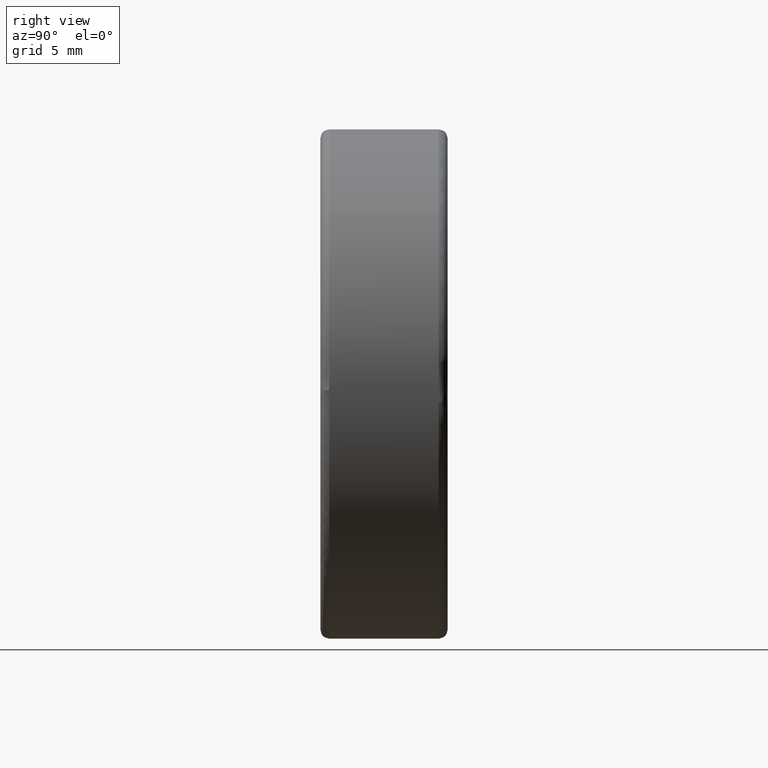
[diagram: clean part render]
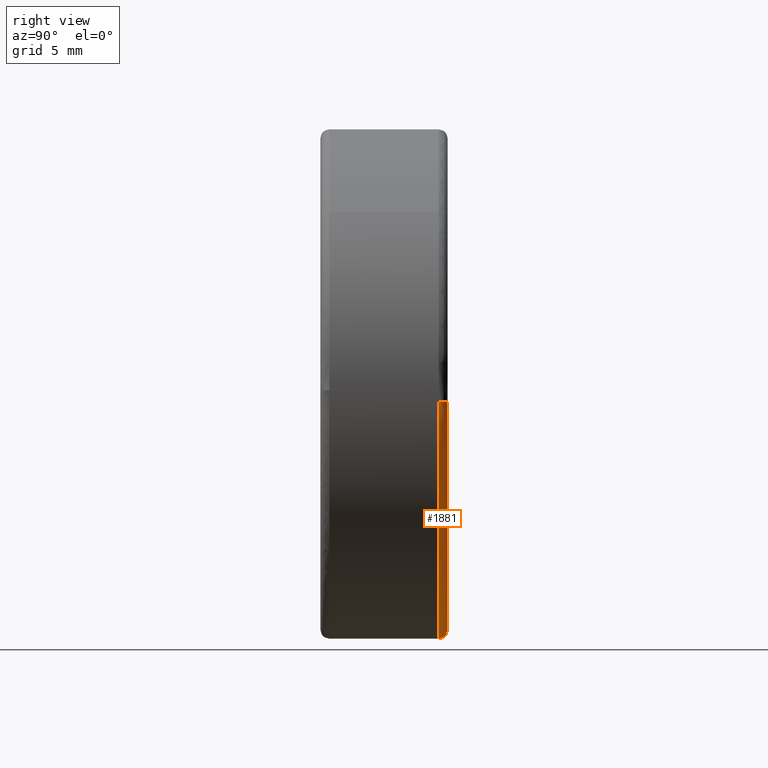
[diagram: same view with one face highlighted and labeled with its STEP entity id]
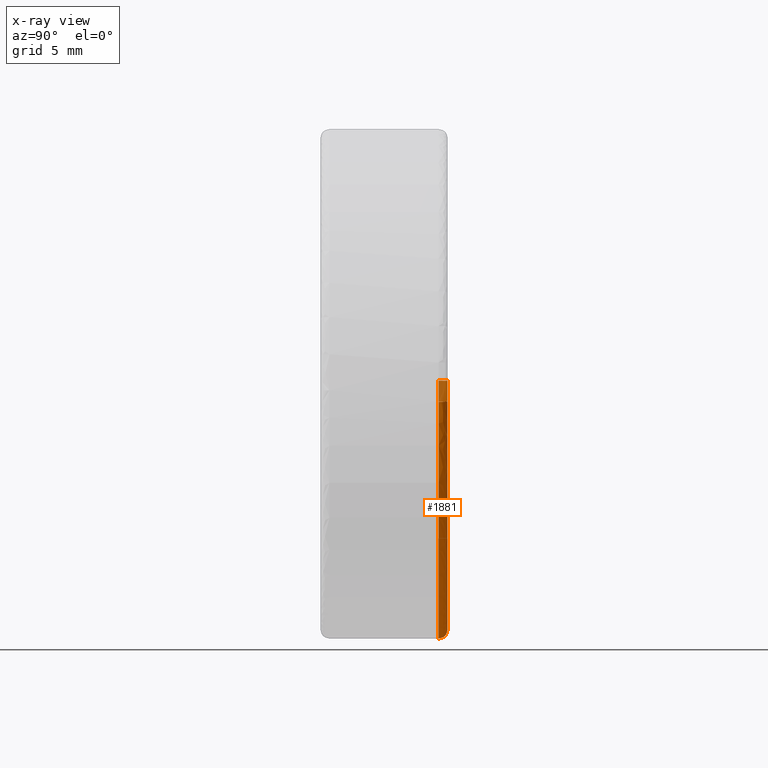
[diagram: x-ray of the same camera — body ghosted, the highlighted face saturated]
A machine part, right view. The second image highlights one B-rep face of the part: STEP entity #1881.
The next image is the same camera in x-ray: the body ghosted, the highlighted face saturated — about 8% of this face is hidden behind the body in this view.
In plain terms, the highlighted face is a freeform B-spline surface patch.
Its self-contained STEP definition (entity closure, byte-faithful):
#1194=CARTESIAN_POINT('',(-13.998894618853329,6.500000000180037,0.175924558374211));
#1195=VERTEX_POINT('',#1194);
#1209=CARTESIAN_POINT('',(0.0,6.500000000000000,-14.0));
#1210=VERTEX_POINT('',#1209);
#1211=CARTESIAN_POINT('',(-13.998894618853329,6.500000000180037,0.175924558374211));
#1212=CARTESIAN_POINT('',(-14.000000000000005,6.500000000000000,0.087965751893737));
#1213=CARTESIAN_POINT('',(-14.0,6.500000000000000,-1.642359E-016));
#1214=CARTESIAN_POINT('',(-13.999999999999998,6.500000000000000,-13.999999999999998));
#1215=CARTESIAN_POINT('',(0.0,6.500000000000000,-14.0));
#1223=(BOUNDED_CURVE()B_SPLINE_CURVE(2,(#1211,#1212,#1213,#1214,#1215),.UNSPECIFIED.,.F.,.U.)B_SPLINE_CURVE_WITH_KNOTS((3,2,3),(0.747784295921545,0.750000000000000,1.0),.UNSPECIFIED.)CURVE()GEOMETRIC_REPRESENTATION_ITEM()RATIONAL_B_SPLINE_CURVE((0.994854295643591,0.997404141202093,1.0,0.707106781186547,1.0))REPRESENTATION_ITEM(''));
#1224=EDGE_CURVE('',#1195,#1210,#1223,.T.);
#1226=CARTESIAN_POINT('',(13.965919433765690,6.500000000179891,-0.976265522061362));
#1227=VERTEX_POINT('',#1226);
#1228=CARTESIAN_POINT('',(0.0,6.500000000000000,-14.0));
#1229=CARTESIAN_POINT('',(13.055515861722975,6.500000000000000,-14.000000000000005));
#1230=CARTESIAN_POINT('',(13.965919433765690,6.500000000179892,-0.976265522061362));
#1238=(BOUNDED_CURVE()B_SPLINE_CURVE(2,(#1228,#1229,#1230),.UNSPECIFIED.,.F.,.U.)B_SPLINE_CURVE_WITH_KNOTS((3,3),(0.0,0.237833686535007),.UNSPECIFIED.)CURVE()GEOMETRIC_REPRESENTATION_ITEM()RATIONAL_B_SPLINE_CURVE((1.0,0.721360504033968,0.972879876386797))REPRESENTATION_ITEM(''));
#1239=EDGE_CURVE('',#1210,#1227,#1238,.T.);
#1757=CARTESIAN_POINT('',(13.467136599023259,7.0,-0.941398896463548));
#1758=VERTEX_POINT('',#1757);
#1759=CARTESIAN_POINT('',(13.467136599023261,7.0,-0.941398896463548));
#1760=CARTESIAN_POINT('',(13.965919433407141,6.999999995628543,-0.976265522031092));
#1761=CARTESIAN_POINT('',(13.965919433765686,6.500000000179892,-0.976265522061362));
#1769=(BOUNDED_CURVE()B_SPLINE_CURVE(2,(#1759,#1760,#1761),.UNSPECIFIED.,.F.,.U.)B_SPLINE_CURVE_WITH_KNOTS((3,3),(-1.734750782573690,-0.265249209089294),.UNSPECIFIED.)CURVE()GEOMETRIC_REPRESENTATION_ITEM()RATIONAL_B_SPLINE_CURVE((0.869031708728120,0.614498218236229,0.869031711616242))REPRESENTATION_ITEM(''));
#1770=EDGE_CURVE('',#1758,#1227,#1769,.T.);
#1789=CARTESIAN_POINT('',(-13.498934098885870,7.0,0.169641538498509));
#1790=VERTEX_POINT('',#1789);
#1804=CARTESIAN_POINT('',(-13.498934098885865,7.0,0.169641538498509));
#1805=CARTESIAN_POINT('',(-13.998894618493374,6.999999995729796,0.175924558362402));
#1806=CARTESIAN_POINT('',(-13.998894618853331,6.500000000180039,0.175924558374211));
#1814=(BOUNDED_CURVE()B_SPLINE_CURVE(2,(#1804,#1805,#1806),.UNSPECIFIED.,.F.,.U.)B_SPLINE_CURVE_WITH_KNOTS((3,3),(-1.734750782784113,-0.265249209089903),.UNSPECIFIED.)CURVE()GEOMETRIC_REPRESENTATION_ITEM()RATIONAL_B_SPLINE_CURVE((0.889029720431453,0.628638947922395,0.889029723311248))REPRESENTATION_ITEM(''));
#1815=EDGE_CURVE('',#1790,#1195,#1814,.T.);
#1822=CARTESIAN_POINT('',(-13.464167943504798,6.998789658774498,0.169204631060593));
#1823=CARTESIAN_POINT('',(-13.633372574565396,6.998789658774499,-13.294963312444214));
#1824=CARTESIAN_POINT('',(-0.169204631060594,6.998789658774498,-13.464167943504798));
#1825=CARTESIAN_POINT('',(12.545728681789932,6.998789658774499,-13.623956918894018));
#1826=CARTESIAN_POINT('',(13.432452337232101,6.998789658774501,-0.938974347925652));
#1827=CARTESIAN_POINT('',(-14.037660185002279,7.038768971969888,0.176411726482000));
#1828=CARTESIAN_POINT('',(-14.214071911484282,7.038768971969888,-13.861248458520278));
#1829=CARTESIAN_POINT('',(-0.176411726482001,7.038768971969888,-14.037660185002279));
#1830=CARTESIAN_POINT('',(13.080100957383074,7.038768971969891,-14.204255205744396));
#1831=CARTESIAN_POINT('',(14.004593685439476,7.038768971969891,-0.978968984486932));
#1832=CARTESIAN_POINT('',(-13.997684395441686,6.465231420773707,0.175909349450435));
#1833=CARTESIAN_POINT('',(-14.173593744892118,6.465231420773705,-13.821775045991247));
#1834=CARTESIAN_POINT('',(-0.175909349450436,6.465231420773707,-13.997684395441686));
#1835=CARTESIAN_POINT('',(13.042852060030338,6.465231420773704,-14.163804994705911));
#1836=CARTESIAN_POINT('',(13.964712061103757,6.465231420773708,-0.976181122578720));
#1844=(BOUNDED_SURFACE()B_SPLINE_SURFACE(2,2,((#1822,#1827,#1832),(#1823,#1828,#1833),(#1824,#1829,#1834),(#1825,#1830,#1835),(#1826,#1831,#1836)),.UNSPECIFIED.,.F.,.F.,.U.)B_SPLINE_SURFACE_WITH_KNOTS((3,2,3),(3,3),(0.0,23.193954170758939,45.460150174687513),(0.0,0.911187401954838),.UNSPECIFIED.)GEOMETRIC_REPRESENTATION_ITEM()RATIONAL_B_SPLINE_SURFACE(((0.916342387972045,0.601326415415735,0.916342120784090),(0.647951916423707,0.425201986047065,0.647951727493292),(0.916342387972045,0.601326415415735,0.916342120784090),(0.658687535285641,0.432246963221812,0.658687343224924),(0.895729999757132,0.587800059240221,0.895729738579356)))REPRESENTATION_ITEM('')SURFACE());
#1845=ORIENTED_EDGE('',*,*,#1239,.F.);
#1846=ORIENTED_EDGE('',*,*,#1224,.F.);
#1847=ORIENTED_EDGE('',*,*,#1815,.F.);
#1848=CARTESIAN_POINT('',(0.0,7.0,-13.500000000000000));
#1849=VERTEX_POINT('',#1848);
#1850=CARTESIAN_POINT('',(-13.498934098885863,7.000000000000001,0.169641538498509));
#1851=CARTESIAN_POINT('',(-13.500000000000002,7.000000000000001,0.084824117936941));
#1852=CARTESIAN_POINT('',(-13.500000000000000,7.0,-1.642359E-016));
#1853=CARTESIAN_POINT('',(-13.500000000000000,6.999999999999999,-13.500000000000000));
#1854=CARTESIAN_POINT('',(0.0,7.0,-13.500000000000000));
#1862=(BOUNDED_CURVE()B_SPLINE_CURVE(2,(#1850,#1851,#1852,#1853,#1854),.UNSPECIFIED.,.F.,.U.)B_SPLINE_CURVE_WITH_KNOTS((3,2,3),(0.747784295920519,0.750000000000000,1.0),.UNSPECIFIED.)CURVE()GEOMETRIC_REPRESENTATION_ITEM()RATIONAL_B_SPLINE_CURVE((0.994854295641228,0.997404141200890,1.0,0.707106781186548,1.0))REPRESENTATION_ITEM(''));
#1863=EDGE_CURVE('',#1790,#1849,#1862,.T.);
#1864=ORIENTED_EDGE('',*,*,#1863,.T.);
#1865=CARTESIAN_POINT('',(0.0,7.0,-13.500000000000000));
#1866=CARTESIAN_POINT('',(12.589247438019397,7.0,-13.500000000000002));
#1867=CARTESIAN_POINT('',(13.467136599023261,7.0,-0.941398896463548));
#1875=(BOUNDED_CURVE()B_SPLINE_CURVE(2,(#1865,#1866,#1867),.UNSPECIFIED.,.F.,.U.)B_SPLINE_CURVE_WITH_KNOTS((3,3),(0.0,0.237833686534045),.UNSPECIFIED.)CURVE()GEOMETRIC_REPRESENTATION_ITEM()RATIONAL_B_SPLINE_CURVE((1.0,0.721360504035096,0.972879876384762))REPRESENTATION_ITEM(''));
#1876=EDGE_CURVE('',#1849,#1758,#1875,.T.);
#1877=ORIENTED_EDGE('',*,*,#1876,.T.);
#1878=ORIENTED_EDGE('',*,*,#1770,.T.);
#1879=EDGE_LOOP('',(#1845,#1846,#1847,#1864,#1877,#1878));
#1880=FACE_OUTER_BOUND('',#1879,.T.);
#1881=ADVANCED_FACE('',(#1880),#1844,.T.);